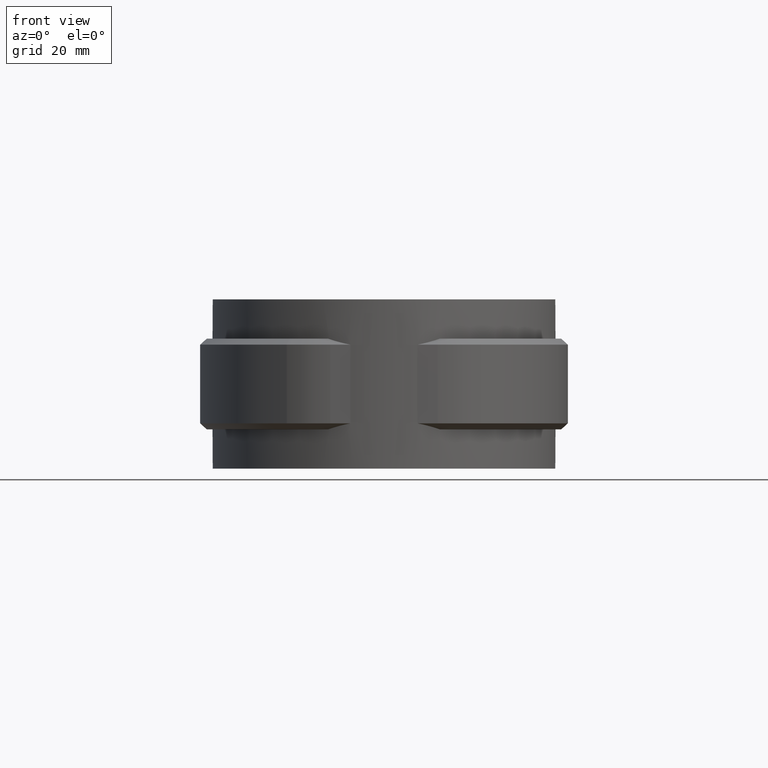
[diagram: clean part render]
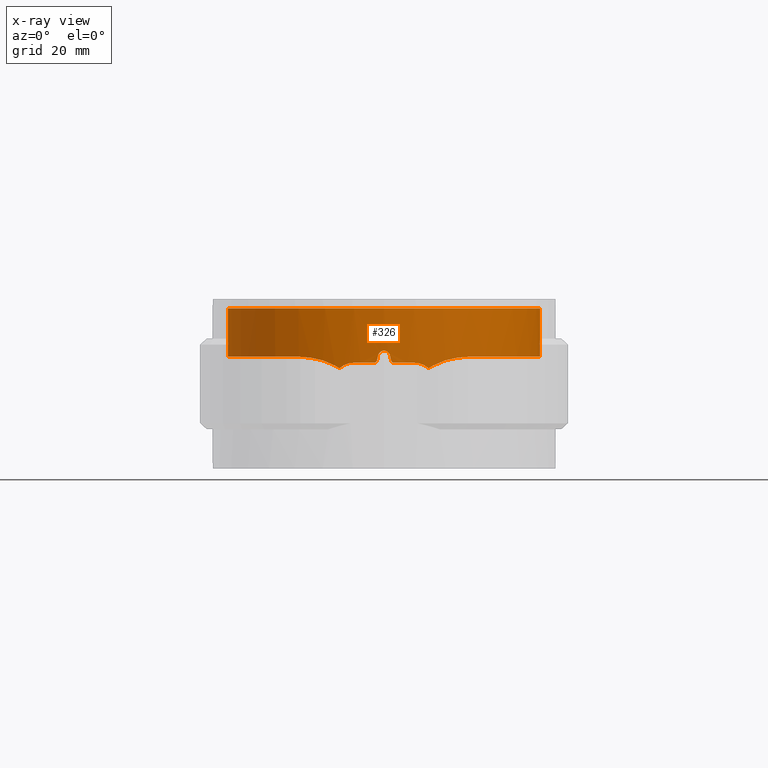
[diagram: x-ray — body ghosted, one internal face saturated and labeled with its STEP entity id]
A machine part, front view, then the same camera in x-ray: the body is ghosted and one INTERNAL B-rep face — a face not visible from any outside direction — is saturated and labeled: STEP entity #326.
In plain terms, the highlighted cylindrical surface (partial cylindrical patch) has radius 25.8 mm, axis along (0, 0, 1).
Its self-contained STEP definition (entity closure, byte-faithful):
#326 = ADVANCED_FACE( '', ( #554 ), #555, .F. );
#554 = FACE_OUTER_BOUND( '', #1201, .T. );
#555 = CYLINDRICAL_SURFACE( '', #1202, 25.8000000000000 );
#1201 = EDGE_LOOP( '', ( #2423, #2424, #2425, #2426, #2427, #2428, #2429, #2430, #2431, #2432, #2433, #2434, #2435, #2436, #2437, #2438, #2439, #2440 ) );
#1202 = AXIS2_PLACEMENT_3D( '', #2441, #2442, #2443 );
#2423 = ORIENTED_EDGE( '', *, *, #5242, .T. );
#2424 = ORIENTED_EDGE( '', *, *, #5207, .T. );
#2425 = ORIENTED_EDGE( '', *, *, #5209, .T. );
#2426 = ORIENTED_EDGE( '', *, *, #5243, .T. );
#2427 = ORIENTED_EDGE( '', *, *, #5244, .T. );
#2428 = ORIENTED_EDGE( '', *, *, #5245, .T. );
#2429 = ORIENTED_EDGE( '', *, *, #5246, .T. );
#2430 = ORIENTED_EDGE( '', *, *, #5247, .T. );
#2431 = ORIENTED_EDGE( '', *, *, #5248, .T. );
#2432 = ORIENTED_EDGE( '', *, *, #5249, .T. );
#2433 = ORIENTED_EDGE( '', *, *, #5250, .T. );
#2434 = ORIENTED_EDGE( '', *, *, #5251, .T. );
#2435 = ORIENTED_EDGE( '', *, *, #5229, .T. );
#2436 = ORIENTED_EDGE( '', *, *, #5252, .F. );
#2437 = ORIENTED_EDGE( '', *, *, #5194, .T. );
#2438 = ORIENTED_EDGE( '', *, *, #5253, .T. );
#2439 = ORIENTED_EDGE( '', *, *, #5225, .T. );
#2440 = ORIENTED_EDGE( '', *, *, #5237, .T. );
#2441 = CARTESIAN_POINT( '', ( 0.000000000000000, 0.000000000000000, 0.000000000000000 ) );
#2442 = DIRECTION( '', ( 0.000000000000000, 0.000000000000000, 1.00000000000000 ) );
#2443 = DIRECTION( '', ( 1.00000000000000, -6.12303176911189E-017, 0.000000000000000 ) );
#5194 = EDGE_CURVE( '', #5798, #5796, #5799, .T. );
#5207 = EDGE_CURVE( '', #5804, #5821, #5823, .T. );
#5209 = EDGE_CURVE( '', #5821, #5824, #5826, .T. );
#5225 = EDGE_CURVE( '', #5854, #5852, #5855, .T. );
#5229 = EDGE_CURVE( '', #5861, #5862, #5863, .T. );
#5237 = EDGE_CURVE( '', #5852, #5875, #5877, .T. );
#5242 = EDGE_CURVE( '', #5875, #5804, #5885, .T. );
#5243 = EDGE_CURVE( '', #5824, #5886, #5887, .T. );
#5244 = EDGE_CURVE( '', #5886, #5888, #5889, .T. );
#5245 = EDGE_CURVE( '', #5888, #5890, #5891, .T. );
#5246 = EDGE_CURVE( '', #5890, #5892, #5893, .T. );
#5247 = EDGE_CURVE( '', #5892, #5894, #5895, .T. );
#5248 = EDGE_CURVE( '', #5894, #5896, #5897, .T. );
#5249 = EDGE_CURVE( '', #5896, #5898, #5899, .T. );
#5250 = EDGE_CURVE( '', #5898, #5900, #5901, .T. );
#5251 = EDGE_CURVE( '', #5900, #5861, #5902, .T. );
#5252 = EDGE_CURVE( '', #5798, #5862, #5903, .T. );
#5253 = EDGE_CURVE( '', #5796, #5854, #5904, .T. );
#5796 = VERTEX_POINT( '', #6918 );
#5798 = VERTEX_POINT( '', #6920 );
#5799 = CIRCLE( '', #6921, 25.8000000000000 );
#5804 = VERTEX_POINT( '', #6927 );
#5821 = VERTEX_POINT( '', #7001 );
#5823 = B_SPLINE_CURVE_WITH_KNOTS( '', 3, ( #7004, #7005, #7006, #7007, #7008, #7009, #7010, #7011, #7012, #7013 ), .UNSPECIFIED., .F., .F., ( 4, 2, 2, 2, 4 ), ( 0.00847385294775892, 0.00913614341819715, 0.00979843388863537, 0.0104607243590736, 0.0111230148295118 ), .UNSPECIFIED. );
#5824 = VERTEX_POINT( '', #7014 );
#5826 = CIRCLE( '', #7017, 25.8000000000000 );
#5852 = VERTEX_POINT( '', #7303 );
#5854 = VERTEX_POINT( '', #7311 );
#5855 = B_SPLINE_CURVE_WITH_KNOTS( '', 3, ( #7312, #7313, #7314, #7315, #7316, #7317, #7318, #7319, #7320, #7321, #7322, #7323, #7324, #7325, #7326, #7327, #7328, #7329, #7330, #7331, #7332, #7333, #7334, #7335, #7336, #7337, #7338, #7339, #7340, #7341, #7342, #7343, #7344, #7345, #7346, #7347, #7348, #7349, #7350, #7351, #7352, #7353, #7354, #7355, #7356, #7357 ), .UNSPECIFIED., .F., .F., ( 4, 2, 2, 2, 2, 2, 2, 2, 2, 2, 2, 2, 2, 2, 2, 2, 2, 2, 2, 2, 2, 2, 4 ), ( 1.73472347597681E-018, 0.00373618031947293, 0.00747236063894586, 0.00934045079868232, 0.0112085409584188, 0.0149447212778917, 0.0168128114376282, 0.0186809015973647, 0.0224170819168376, 0.0242851720765741, 0.0261532622363106, 0.0298894425557835, 0.0336256228752565, 0.0354937130349929, 0.0373618031947294, 0.0410979835142024, 0.0429660736739389, 0.0448341638336753, 0.0485703441531483, 0.0504384343128848, 0.0523065244726213, 0.0560427047920942, 0.0597788851115672 ), .UNSPECIFIED. );
#5861 = VERTEX_POINT( '', #7393 );
#5862 = VERTEX_POINT( '', #7394 );
#5863 = B_SPLINE_CURVE_WITH_KNOTS( '', 3, ( #7395, #7396, #7397, #7398, #7399, #7400, #7401, #7402, #7403, #7404, #7405, #7406, #7407, #7408, #7409, #7410, #7411, #7412, #7413, #7414, #7415, #7416, #7417, #7418, #7419, #7420, #7421, #7422, #7423, #7424, #7425, #7426, #7427, #7428, #7429, #7430, #7431, #7432, #7433, #7434, #7435, #7436, #7437, #7438, #7439, #7440 ), .UNSPECIFIED., .F., .F., ( 4, 2, 2, 2, 2, 2, 2, 2, 2, 2, 2, 2, 2, 2, 2, 2, 2, 2, 2, 2, 2, 2, 4 ), ( 9.81307786677359E-018, 0.00373617763623476, 0.00747235527246951, 0.00934044409058689, 0.0112085329087043, 0.0149447105449390, 0.0168127993630564, 0.0186808881811738, 0.0224170658174085, 0.0242851546355259, 0.0261532434536433, 0.0298894210898780, 0.0336255987261128, 0.0354936875442301, 0.0373617763623475, 0.0410979539985823, 0.0429660428166996, 0.0448341316348170, 0.0485703092710518, 0.0504383980891691, 0.0523064869072865, 0.0560426645435212, 0.0597788421797560 ), .UNSPECIFIED. );
#5875 = VERTEX_POINT( '', #7537 );
#5877 = B_SPLINE_CURVE_WITH_KNOTS( '', 3, ( #7543, #7544, #7545, #7546, #7547, #7548, #7549, #7550, #7551, #7552 ), .UNSPECIFIED., .F., .F., ( 4, 2, 2, 2, 4 ), ( 3.46944695195361E-018, 0.00171733910747662, 0.00343467821495323, 0.00515201732242984, 0.00686935642990646 ), .UNSPECIFIED. );
#5885 = B_SPLINE_CURVE_WITH_KNOTS( '', 3, ( #7581, #7582, #7583, #7584 ), .UNSPECIFIED., .F., .F., ( 4, 4 ), ( 7.11061015606816E-016, 0.000883886196938753 ), .UNSPECIFIED. );
#5886 = VERTEX_POINT( '', #7585 );
#5887 = B_SPLINE_CURVE_WITH_KNOTS( '', 3, ( #7586, #7587, #7588, #7589, #7590, #7591 ), .UNSPECIFIED., .F., .F., ( 4, 2, 4 ), ( 8.20849171219253E-018, 0.000336076006616285, 0.000672152013232562 ), .UNSPECIFIED. );
#5888 = VERTEX_POINT( '', #7592 );
#5889 = ELLIPSE( '', #7593, 117.533393289804, 25.8000000000000 );
#5890 = VERTEX_POINT( '', #7594 );
#5891 = B_SPLINE_CURVE_WITH_KNOTS( '', 3, ( #7595, #7596, #7597, #7598, #7599, #7600, #7601, #7602, #7603, #7604 ), .UNSPECIFIED., .F., .F., ( 4, 2, 2, 2, 4 ), ( 0.000000000000000, 0.000671617565681659, 0.00134323513136332, 0.00201485269704498, 0.00268647026272664 ), .UNSPECIFIED. );
#5892 = VERTEX_POINT( '', #7605 );
#5893 = ELLIPSE( '', #7606, 117.533453246316, 25.8000000000000 );
#5894 = VERTEX_POINT( '', #7607 );
#5895 = B_SPLINE_CURVE_WITH_KNOTS( '', 3, ( #7608, #7609, #7610, #7611, #7612, #7613 ), .UNSPECIFIED., .F., .F., ( 4, 2, 4 ), ( 2.04566856771261E-018, 0.000336081783648389, 0.000672163567296776 ), .UNSPECIFIED. );
#5896 = VERTEX_POINT( '', #7614 );
#5897 = CIRCLE( '', #7615, 25.8000000000000 );
#5898 = VERTEX_POINT( '', #7616 );
#5899 = B_SPLINE_CURVE_WITH_KNOTS( '', 3, ( #7617, #7618, #7619, #7620, #7621, #7622, #7623, #7624, #7625, #7626 ), .UNSPECIFIED., .F., .F., ( 4, 2, 2, 2, 4 ), ( 3.46944695195361E-018, 0.000662919875600957, 0.00132583975120191, 0.00198875962680287, 0.00265167950240382 ), .UNSPECIFIED. );
#5900 = VERTEX_POINT( '', #7627 );
#5901 = B_SPLINE_CURVE_WITH_KNOTS( '', 3, ( #7628, #7629, #7630, #7631 ), .UNSPECIFIED., .F., .F., ( 4, 4 ), ( 0.00814114400030283, 0.00902205076331056 ), .UNSPECIFIED. );
#5902 = B_SPLINE_CURVE_WITH_KNOTS( '', 3, ( #7632, #7633, #7634, #7635, #7636, #7637, #7638, #7639, #7640, #7641 ), .UNSPECIFIED., .F., .F., ( 4, 2, 2, 2, 4 ), ( 1.73472347597681E-018, 0.00170899834983024, 0.00341799669966047, 0.00512699504949071, 0.00683599339932095 ), .UNSPECIFIED. );
#5903 = LINE( '', #7642, #7643 );
#5904 = LINE( '', #7644, #7645 );
#6918 = CARTESIAN_POINT( '', ( 6.03237410071943, 25.0848652120949, 0.000000000000000 ) );
#6920 = CARTESIAN_POINT( '', ( -6.03237410071944, 25.0848652120949, 0.000000000000000 ) );
#6921 = AXIS2_PLACEMENT_3D( '', #10413, #10414, #10415 );
#6927 = CARTESIAN_POINT( '', ( 7.36770156713654, -24.7256339376287, -9.92240629870050 ) );
#7001 = CARTESIAN_POINT( '', ( 5.00000000000000, -25.3108672312902, -9.00000000000002 ) );
#7004 = CARTESIAN_POINT( '', ( 7.36770156713658, -24.7256339376286, -9.92240629870044 ) );
#7005 = CARTESIAN_POINT( '', ( 7.20768725923873, -24.7733147238943, -9.77542187389252 ) );
#7006 = CARTESIAN_POINT( '', ( 7.03611587404370, -24.8227539171649, -9.64504375721801 ) );
#7007 = CARTESIAN_POINT( '', ( 6.67007827215875, -24.9236051659540, -9.41659578297040 ) );
#7008 = CARTESIAN_POINT( '', ( 6.47382625859015, -24.9754378902383, -9.31811712369702 ) );
#7009 = CARTESIAN_POINT( '', ( 6.07189689829046, -25.0761837665163, -9.16120088677751 ) );
#7010 = CARTESIAN_POINT( '', ( 5.86504202007061, -25.1254630968022, -9.10166789016050 ) );
#7011 = CARTESIAN_POINT( '', ( 5.43923193058691, -25.2210699561150, -9.02091475580046 ) );
#7012 = CARTESIAN_POINT( '', ( 5.21976287136960, -25.2674544810748, -9.00000000000000 ) );
#7013 = CARTESIAN_POINT( '', ( 5.00000000000000, -25.3108672312902, -8.99999999999999 ) );
#7014 = CARTESIAN_POINT( '', ( 1.64999999999995, -25.7471843120758, -9.00000000000002 ) );
#7017 = AXIS2_PLACEMENT_3D( '', #10423, #10424, #10425 );
#7303 = CARTESIAN_POINT( '', ( 14.0746045988059, -21.6228005907485, -8.00316201356002 ) );
#7311 = CARTESIAN_POINT( '', ( 6.03237410071943, 25.0848652120949, -8.00421859647345 ) );
#7312 = CARTESIAN_POINT( '', ( 6.03237410071942, 25.0848652120949, -8.00421859647343 ) );
#7313 = CARTESIAN_POINT( '', ( 7.26068028571261, 24.7894838195517, -8.00544838312871 ) );
#7314 = CARTESIAN_POINT( '', ( 8.45213205266304, 24.4080579795106, -8.00701797057330 ) );
#7315 = CARTESIAN_POINT( '', ( 10.7643649610826, 23.4802103387390, -8.00789522628143 ) );
#7316 = CARTESIAN_POINT( '', ( 11.8851383455205, 22.9337704286318, -8.00721043540803 ) );
#7317 = CARTESIAN_POINT( '', ( 13.5121261110203, 21.9876336346415, -8.00533507802577 ) );
#7318 = CARTESIAN_POINT( '', ( 14.0475094696409, 21.6495534350301, -8.00459736652658 ) );
#7319 = CARTESIAN_POINT( '', ( 15.0858771380485, 20.9392453830500, -8.00344518684758 ) );
#7320 = CARTESIAN_POINT( '', ( 15.5893780365250, 20.5669859111848, -8.00307121611898 ) );
#7321 = CARTESIAN_POINT( '', ( 17.0539102108764, 19.4000673881720, -8.00324725469724 ) );
#7322 = CARTESIAN_POINT( '', ( 17.9692068879716, 18.5555254471872, -8.00456444818308 ) );
#7323 = CARTESIAN_POINT( '', ( 19.2504369275996, 17.1886782009989, -8.00562225454128 ) );
#7324 = CARTESIAN_POINT( '', ( 19.6621689044348, 16.7163258541374, -8.00584695541366 ) );
#7325 = CARTESIAN_POINT( '', ( 20.4541782167481, 15.7373132893048, -8.00590098524753 ) );
#7326 = CARTESIAN_POINT( '', ( 20.8336421104671, 15.2312946191079, -8.00572816411907 ) );
#7327 = CARTESIAN_POINT( '', ( 21.9063658924988, 13.6866011422974, -8.00477663601863 ) );
#7328 = CARTESIAN_POINT( '', ( 22.5408267318255, 12.6136228621821, -8.00346869992973 ) );
#7329 = CARTESIAN_POINT( '', ( 23.3737383452074, 10.9405869877108, -8.00305964478180 ) );
#7330 = CARTESIAN_POINT( '', ( 23.6315002028938, 10.3722714708539, -8.00331003816415 ) );
#7331 = CARTESIAN_POINT( '', ( 24.1066988378430, 9.21405928166303, -8.00422816277126 ) );
#7332 = CARTESIAN_POINT( '', ( 24.3245104117547, 8.62301146299956, -8.00485155523671 ) );
#7333 = CARTESIAN_POINT( '', ( 24.9131778138079, 6.82393618580402, -8.00648074527608 ) );
#7334 = CARTESIAN_POINT( '', ( 25.2134222870090, 5.61023799728686, -8.00710157738205 ) );
#7335 = CARTESIAN_POINT( '', ( 25.6366033037461, 3.15531374915432, -8.00637479135126 ) );
#7336 = CARTESIAN_POINT( '', ( 25.7595258191951, 1.91408551083722, -8.00503048875464 ) );
#7337 = CARTESIAN_POINT( '', ( 25.8076201398247, 0.0310831410522773, -8.00350455443992 ) );
#7338 = CARTESIAN_POINT( '', ( 25.8006211446676, -0.602429536608931, -8.00311877270820 ) );
#7339 = CARTESIAN_POINT( '', ( 25.7406884620227, -1.85793710828312, -8.00319741707570 ) );
#7340 = CARTESIAN_POINT( '', ( 25.6879657950527, -2.48147131136124, -8.00358598945744 ) );
#7341 = CARTESIAN_POINT( '', ( 25.4629977867101, -4.33968777006187, -8.00492496893898 ) );
#7342 = CARTESIAN_POINT( '', ( 25.2242963534625, -5.56204767092465, -8.00594267936942 ) );
#7343 = CARTESIAN_POINT( '', ( 24.7326013388371, -7.37080770468105, -8.00611389959975 ) );
#7344 = CARTESIAN_POINT( '', ( 24.5463436228589, -7.96958187379110, -8.00597151630471 ) );
#7345 = CARTESIAN_POINT( '', ( 24.1279280144700, -9.15861944962663, -8.00535992492284 ) );
#7346 = CARTESIAN_POINT( '', ( 23.8965456258034, -9.74615393389851, -8.00489206242499 ) );
#7347 = CARTESIAN_POINT( '', ( 23.1448142253165, -11.4685313738498, -8.00348680900645 ) );
#7348 = CARTESIAN_POINT( '', ( 22.5644432085294, -12.5713524115484, -8.00277801196227 ) );
#7349 = CARTESIAN_POINT( '', ( 21.5769460371602, -14.1585186160504, -8.00401119041425 ) );
#7350 = CARTESIAN_POINT( '', ( 21.2282131341587, -14.6763522786011, -8.00461999141824 ) );
#7351 = CARTESIAN_POINT( '', ( 20.4909914895077, -15.6892197655520, -8.00570811993846 ) );
#7352 = CARTESIAN_POINT( '', ( 20.1012321410511, -16.1857328639174, -8.00618751382072 ) );
#7353 = CARTESIAN_POINT( '', ( 18.8793839121942, -17.6294864025608, -8.00697515163917 ) );
#7354 = CARTESIAN_POINT( '', ( 18.0029635594344, -18.5227607714454, -8.00650357444221 ) );
#7355 = CARTESIAN_POINT( '', ( 16.1299631380105, -20.1748272033478, -8.00444573249523 ) );
#7356 = CARTESIAN_POINT( '', ( 15.1333867818155, -20.9336234178111, -8.00285361401559 ) );
#7357 = CARTESIAN_POINT( '', ( 14.0746045988058, -21.6228005907485, -8.00316201355999 ) );
#7393 = CARTESIAN_POINT( '', ( -14.0746045988059, -21.6228005907485, -8.00316201356002 ) );
#7394 = CARTESIAN_POINT( '', ( -6.03237410071941, 25.0848652120949, -8.00421859647342 ) );
#7395 = CARTESIAN_POINT( '', ( -14.0746045988059, -21.6228005907485, -8.00316201356007 ) );
#7396 = CARTESIAN_POINT( '', ( -15.1333869034552, -20.9336233386340, -8.00285361398024 ) );
#7397 = CARTESIAN_POINT( '', ( -16.1286590915959, -20.1756829817981, -8.00444351331206 ) );
#7398 = CARTESIAN_POINT( '', ( -17.9974199617546, -18.5279438307432, -8.00649826732587 ) );
#7399 = CARTESIAN_POINT( '', ( -18.8708952578265, -17.6381305472234, -8.00697221119571 ) );
#7400 = CARTESIAN_POINT( '', ( -20.0877556595109, -16.2023349188312, -8.00620031617392 ) );
#7401 = CARTESIAN_POINT( '', ( -20.4792375666224, -15.7046653910953, -8.00572391010487 ) );
#7402 = CARTESIAN_POINT( '', ( -21.2202480234852, -14.6879801258782, -8.00463326545930 ) );
#7403 = CARTESIAN_POINT( '', ( -21.5702524945042, -14.1687622732478, -8.00402173339330 ) );
#7404 = CARTESIAN_POINT( '', ( -22.5601732933537, -12.5792308629640, -8.00277903396345 ) );
#7405 = CARTESIAN_POINT( '', ( -23.1403053144642, -11.4772030165014, -8.00347968288032 ) );
#7406 = CARTESIAN_POINT( '', ( -23.8906133537362, -9.76056214387442, -8.00488033213110 ) );
#7407 = CARTESIAN_POINT( '', ( -24.1206574138140, -9.17770784552321, -8.00534659262012 ) );
#7408 = CARTESIAN_POINT( '', ( -24.5396280094886, -7.99018726490685, -8.00596431612964 ) );
#7409 = CARTESIAN_POINT( '', ( -24.7280028918479, -7.38639645245477, -8.00611246593057 ) );
#7410 = CARTESIAN_POINT( '', ( -25.2223318830471, -5.57188412206545, -8.00594933163577 ) );
#7411 = CARTESIAN_POINT( '', ( -25.4614001083746, -4.34850014713748, -8.00493293337967 ) );
#7412 = CARTESIAN_POINT( '', ( -25.6868025741090, -2.49324302282104, -8.00359367513219 ) );
#7413 = CARTESIAN_POINT( '', ( -25.7396484485914, -1.87144706959029, -8.00320440767272 ) );
#7414 = CARTESIAN_POINT( '', ( -25.8001195905802, -0.621003625682383, -8.00311394769907 ) );
#7415 = CARTESIAN_POINT( '', ( -25.8077131099012, 0.00885291084440763, -8.00348911961148 ) );
#7416 = CARTESIAN_POINT( '', ( -25.7607831144393, 1.90120768954984, -8.00501500809569 ) );
#7417 = CARTESIAN_POINT( '', ( -25.6378177513319, 3.14543096940042, -8.00636745856395 ) );
#7418 = CARTESIAN_POINT( '', ( -25.2155828913344, 5.60051912629718, -8.00710307200059 ) );
#7419 = CARTESIAN_POINT( '', ( -24.9162994156386, 6.81138135822008, -8.00648884303230 ) );
#7420 = CARTESIAN_POINT( '', ( -24.3318565661995, 8.60203343321273, -8.00487215116755 ) );
#7421 = CARTESIAN_POINT( '', ( -24.1133831145785, 9.19672379235804, -8.00424471066269 ) );
#7422 = CARTESIAN_POINT( '', ( -23.6369981620119, 10.3598885916987, -8.00331711924920 ) );
#7423 = CARTESIAN_POINT( '', ( -23.3787710228885, 10.9298834678380, -8.00306050024977 ) );
#7424 = CARTESIAN_POINT( '', ( -22.5452790238145, 12.6058534968097, -8.00345994521201 ) );
#7425 = CARTESIAN_POINT( '', ( -21.9115063398552, 13.6779892503443, -8.00476747713704 ) );
#7426 = CARTESIAN_POINT( '', ( -20.8431886127966, 15.2181425757185, -8.00572195685283 ) );
#7427 = CARTESIAN_POINT( '', ( -20.4673975881742, 15.7201417254844, -8.00589763630383 ) );
#7428 = CARTESIAN_POINT( '', ( -19.6754052329039, 16.7007679111690, -8.00585196955021 ) );
#7429 = CARTESIAN_POINT( '', ( -19.2608462862721, 17.1770838694947, -8.00562927483305 ) );
#7430 = CARTESIAN_POINT( '', ( -17.9763559965235, 18.5488615493913, -8.00457344756959 ) );
#7431 = CARTESIAN_POINT( '', ( -17.0605686434363, 19.3940711707312, -8.00325604261763 ) );
#7432 = CARTESIAN_POINT( '', ( -15.5991114250348, 20.5595713112542, -8.00306844564855 ) );
#7433 = CARTESIAN_POINT( '', ( -15.0972718058432, 20.9309515522717, -8.00343531100326 ) );
#7434 = CARTESIAN_POINT( '', ( -14.0637517181760, 21.6389287274707, -8.00457664906139 ) );
#7435 = CARTESIAN_POINT( '', ( -13.5303795565576, 21.9764945305707, -8.00531188503512 ) );
#7436 = CARTESIAN_POINT( '', ( -11.8960292207845, 22.9284630964466, -8.00720209548952 ) );
#7437 = CARTESIAN_POINT( '', ( -10.7713225565966, 23.4771799165608, -8.00789555102751 ) );
#7438 = CARTESIAN_POINT( '', ( -8.45364679338600, 24.4076877713864, -8.00702085176590 ) );
#7439 = CARTESIAN_POINT( '', ( -7.26067979377365, 24.7894839378525, -8.00544838263619 ) );
#7440 = CARTESIAN_POINT( '', ( -6.03237410071940, 25.0848652120949, -8.00421859647343 ) );
#7537 = CARTESIAN_POINT( '', ( 8.09912282365073, -24.4957998335916, -9.48095950445833 ) );
#7543 = CARTESIAN_POINT( '', ( 14.0746045988059, -21.6228005907485, -8.00316201356003 ) );
#7544 = CARTESIAN_POINT( '', ( 13.5933316659828, -21.9360683474003, -8.01205812006769 ) );
#7545 = CARTESIAN_POINT( '', ( 13.1039277943613, -22.2317738655920, -8.04378504747904 ) );
#7546 = CARTESIAN_POINT( '', ( 12.1096078854509, -22.7886394879395, -8.15741144226583 ) );
#7547 = CARTESIAN_POINT( '', ( 11.6033085274296, -23.0503512025027, -8.23960686606617 ) );
#7548 = CARTESIAN_POINT( '', ( 10.5891936704272, -23.5334748125223, -8.46483333514525 ) );
#7549 = CARTESIAN_POINT( '', ( 10.0777407759014, -23.7565423147444, -8.60845486933235 ) );
#7550 = CARTESIAN_POINT( '', ( 9.07045988660652, -24.1590752998531, -8.97584538473676 ) );
#7551 = CARTESIAN_POINT( '', ( 8.57539099517002, -24.3383298001851, -9.19776237732004 ) );
#7552 = CARTESIAN_POINT( '', ( 8.09912282365083, -24.4957998335922, -9.48095950445950 ) );
#7581 = CARTESIAN_POINT( '', ( 8.09912282365084, -24.4957998335923, -9.48095950445953 ) );
#7582 = CARTESIAN_POINT( '', ( 7.85298416235659, -24.5771814281111, -9.62242073317317 ) );
#7583 = CARTESIAN_POINT( '', ( 7.60882860535629, -24.6537833204978, -9.76904265677679 ) );
#7584 = CARTESIAN_POINT( '', ( 7.36770156713654, -24.7256339376287, -9.92240629870049 ) );
#7585 = CARTESIAN_POINT( '', ( 1.16219499999998, -25.7738104047883, -8.60975600000002 ) );
#7586 = CARTESIAN_POINT( '', ( 1.64999999999995, -25.7471843120758, -8.99999999999998 ) );
#7587 = CARTESIAN_POINT( '', ( 1.53659676879307, -25.7544517215611, -9.00000000048670 ) );
#7588 = CARTESIAN_POINT( '', ( 1.42648268482782, -25.7606877134254, -8.96144045921544 ) );
#7589 = CARTESIAN_POINT( '', ( 1.24913421574478, -25.7698961586925, -8.81967787855507 ) );
#7590 = CARTESIAN_POINT( '', ( 1.18713939444587, -25.7726856098881, -8.72061997753686 ) );
#7591 = CARTESIAN_POINT( '', ( 1.16219499999998, -25.7738104047883, -8.60975600000002 ) );
#7592 = CARTESIAN_POINT( '', ( 0.975609757981812, -25.7815473856813, -7.78048781325258 ) );
#7593 = AXIS2_PLACEMENT_3D( '', #10426, #10427, #10428 );
#7594 = CARTESIAN_POINT( '', ( -0.975610000000026, -25.7815473765230, -7.78048800000007 ) );
#7595 = CARTESIAN_POINT( '', ( 0.975609757981814, -25.7815473856813, -7.78048781325258 ) );
#7596 = CARTESIAN_POINT( '', ( 0.925760723739446, -25.7834337427531, -7.55893664008497 ) );
#7597 = CARTESIAN_POINT( '', ( 0.802002361521333, -25.7881415443926, -7.36098152569804 ) );
#7598 = CARTESIAN_POINT( '', ( 0.447411547054207, -25.7967299285990, -7.07729999000689 ) );
#7599 = CARTESIAN_POINT( '', ( 0.227096393989775, -25.8000000079439, -6.99999981432400 ) );
#7600 = CARTESIAN_POINT( '', ( -0.227098198963334, -25.7999999920561, -7.00000017880911 ) );
#7601 = CARTESIAN_POINT( '', ( -0.447440716005386, -25.7967293170502, -7.07731810023003 ) );
#7602 = CARTESIAN_POINT( '', ( -0.802000802814022, -25.7881414871987, -7.36098518474046 ) );
#7603 = CARTESIAN_POINT( '', ( -0.925761005968289, -25.7834337325418, -7.55893680752236 ) );
#7604 = CARTESIAN_POINT( '', ( -0.975610000000027, -25.7815473765230, -7.78048800000007 ) );
#7605 = CARTESIAN_POINT( '', ( -1.16219512100914, -25.7738103993318, -8.60975609337375 ) );
#7606 = AXIS2_PLACEMENT_3D( '', #10429, #10430, #10431 );
#7607 = CARTESIAN_POINT( '', ( -1.65000000000003, -25.7471843120758, -9.00000000000002 ) );
#7608 = CARTESIAN_POINT( '', ( -1.16219512100916, -25.7738103993318, -8.60975609337375 ) );
#7609 = CARTESIAN_POINT( '', ( -1.18713950714722, -25.7726856046888, -8.72062003620873 ) );
#7610 = CARTESIAN_POINT( '', ( -1.24912830462559, -25.7698964565163, -8.81967210719463 ) );
#7611 = CARTESIAN_POINT( '', ( -1.42648332301461, -25.7606876893872, -8.96144194367226 ) );
#7612 = CARTESIAN_POINT( '', ( -1.53659680002685, -25.7544517195595, -8.99999999999997 ) );
#7613 = CARTESIAN_POINT( '', ( -1.65000000000003, -25.7471843120758, -8.99999999999997 ) );
#7614 = CARTESIAN_POINT( '', ( -5.00000000000005, -25.3108672312902, -9.00000000000002 ) );
#7615 = AXIS2_PLACEMENT_3D( '', #10432, #10433, #10434 );
#7616 = CARTESIAN_POINT( '', ( -7.36770156712293, -24.7256339376227, -9.92240629868789 ) );
#7617 = CARTESIAN_POINT( '', ( -5.00000000000006, -25.3108672312902, -9.00000000000000 ) );
#7618 = CARTESIAN_POINT( '', ( -5.21995528441438, -25.2674164711079, -9.00000000000000 ) );
#7619 = CARTESIAN_POINT( '', ( -5.43584985592542, -25.2217917361869, -9.02054471094434 ) );
#7620 = CARTESIAN_POINT( '', ( -5.86001060049475, -25.1266296546480, -9.10044768057846 ) );
#7621 = CARTESIAN_POINT( '', ( -6.06969867324153, -25.0767292122483, -9.16038888561380 ) );
#7622 = CARTESIAN_POINT( '', ( -6.47473551434230, -24.9752155143393, -9.31842604838358 ) );
#7623 = CARTESIAN_POINT( '', ( -6.66721622069910, -24.9243694670227, -9.41507172844700 ) );
#7624 = CARTESIAN_POINT( '', ( -7.03289440063355, -24.8236653581163, -9.64277534606361 ) );
#7625 = CARTESIAN_POINT( '', ( -7.20770846718860, -24.7733084043861, -9.77544135489129 ) );
#7626 = CARTESIAN_POINT( '', ( -7.36770156712435, -24.7256339376323, -9.92240629868919 ) );
#7627 = CARTESIAN_POINT( '', ( -8.09912282365084, -24.4957998335923, -9.48095950445953 ) );
#7628 = CARTESIAN_POINT( '', ( -7.36770156713378, -24.7256339376294, -9.92240629870211 ) );
#7629 = CARTESIAN_POINT( '', ( -7.60901589127821, -24.6537275133631, -9.76892353761318 ) );
#7630 = CARTESIAN_POINT( '', ( -7.85316249556993, -24.5771224652436, -9.62231824120646 ) );
#7631 = CARTESIAN_POINT( '', ( -8.09912282365084, -24.4957998335923, -9.48095950445953 ) );
#7632 = CARTESIAN_POINT( '', ( -8.09912282365084, -24.4957998335923, -9.48095950445953 ) );
#7633 = CARTESIAN_POINT( '', ( -8.57657903642960, -24.3379369943921, -9.19705594785080 ) );
#7634 = CARTESIAN_POINT( '', ( -9.07081284882140, -24.1588846843103, -8.97583356297612 ) );
#7635 = CARTESIAN_POINT( '', ( -10.0733104340237, -23.7583621453149, -8.60995432834867 ) );
#7636 = CARTESIAN_POINT( '', ( -10.5842856105011, -23.5357052720704, -8.46608512978655 ) );
#7637 = CARTESIAN_POINT( '', ( -11.6001945013900, -23.0519416116809, -8.24013798207931 ) );
#7638 = CARTESIAN_POINT( '', ( -12.1055395017180, -22.7908410417145, -8.15796387919715 ) );
#7639 = CARTESIAN_POINT( '', ( -13.1027216568501, -22.2325258843764, -8.04383582074930 ) );
#7640 = CARTESIAN_POINT( '', ( -13.5929789952992, -21.9362979060277, -8.01206463902135 ) );
#7641 = CARTESIAN_POINT( '', ( -14.0746045988059, -21.6228005907485, -8.00316201356000 ) );
#7642 = CARTESIAN_POINT( '', ( -6.03237410071944, 25.0848652120949, 0.000000000000000 ) );
#7643 = VECTOR( '', #10435, 1000.00000000000 );
#7644 = CARTESIAN_POINT( '', ( 6.03237410071943, 25.0848652120949, 0.000000000000000 ) );
#7645 = VECTOR( '', #10436, 1000.00000000000 );
#10413 = CARTESIAN_POINT( '', ( 0.000000000000000, 0.000000000000000, 0.000000000000000 ) );
#10414 = DIRECTION( '', ( 0.000000000000000, 0.000000000000000, 1.00000000000000 ) );
#10415 = DIRECTION( '', ( 1.00000000000000, -6.12303176911189E-017, 0.000000000000000 ) );
#10423 = CARTESIAN_POINT( '', ( 0.000000000000000, 0.000000000000000, -9.00000000000003 ) );
#10424 = DIRECTION( '', ( 6.12303176911189E-017, -3.13145149531439E-016, -1.00000000000000 ) );
#10425 = DIRECTION( '', ( 0.000000000000000, 1.00000000000000, -3.13145149531439E-016 ) );
#10426 = CARTESIAN_POINT( '', ( 0.000000000000000, 0.000000000000000, -3.44444212055035 ) );
#10427 = DIRECTION( '', ( -0.975609781292647, -1.70596433957388E-016, -0.219512083143762 ) );
#10428 = DIRECTION( '', ( 0.219512083143762, 3.83841770684856E-017, -0.975609781292647 ) );
#10429 = CARTESIAN_POINT( '', ( 0.000000000000000, 0.000000000000000, -3.44443890776448 ) );
#10430 = DIRECTION( '', ( 0.975609806487711, 3.31181834532394E-017, -0.219511971165610 ) );
#10431 = DIRECTION( '', ( -0.219511971165610, -7.45158328965245E-018, -0.975609806487711 ) );
#10432 = CARTESIAN_POINT( '', ( 0.000000000000000, 0.000000000000000, -9.00000000000003 ) );
#10433 = DIRECTION( '', ( 6.12303176911189E-017, -3.13145149531439E-016, -1.00000000000000 ) );
#10434 = DIRECTION( '', ( 0.000000000000000, 1.00000000000000, -3.13145149531439E-016 ) );
#10435 = DIRECTION( '', ( 0.000000000000000, 0.000000000000000, -1.00000000000000 ) );
#10436 = DIRECTION( '', ( 0.000000000000000, 0.000000000000000, -1.00000000000000 ) );